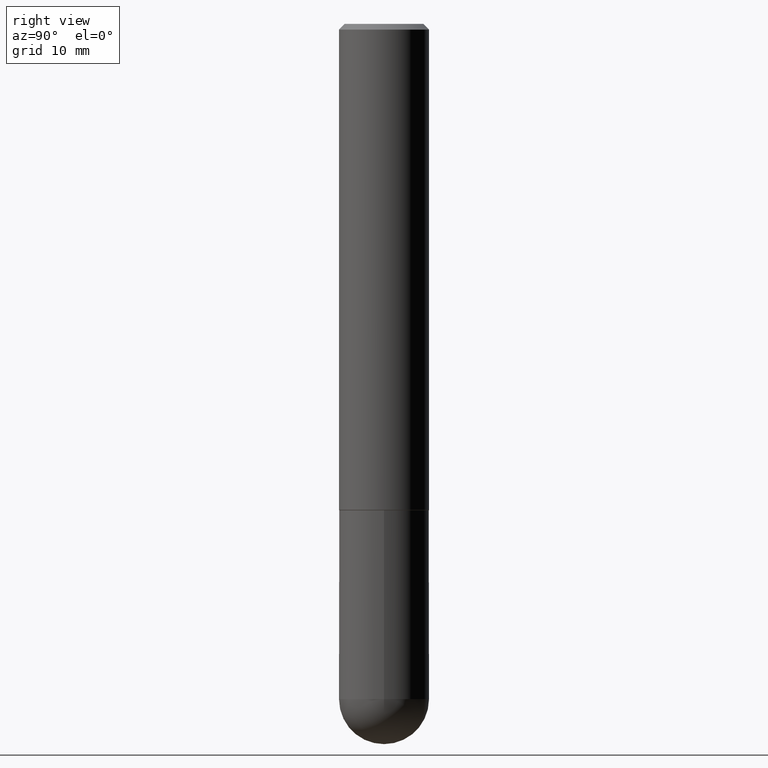
[diagram: clean part render]
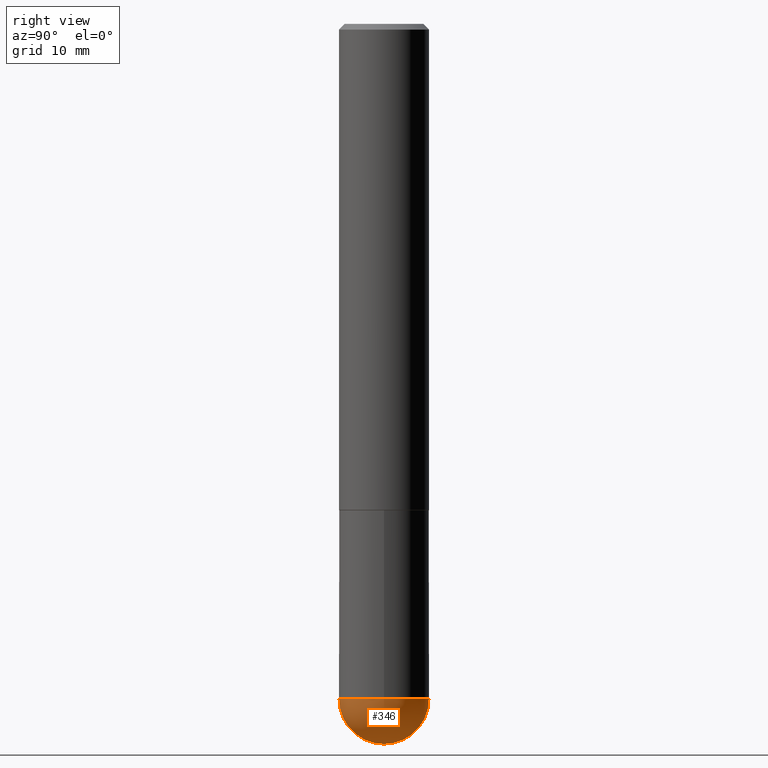
[diagram: same view with one face highlighted and labeled with its STEP entity id]
A machine part, right view. The second image highlights one B-rep face of the part: STEP entity #346.
In plain terms, the highlighted spherical surface has radius 3.9688 mm.
Its self-contained STEP definition (entity closure, byte-faithful):
#6 = VERTEX_POINT ( 'NONE', #272 ) ;
#11 = VERTEX_POINT ( 'NONE', #238 ) ;
#15 = CIRCLE ( 'NONE', #250, 0.1562500000000000000 ) ;
#22 = CARTESIAN_POINT ( 'NONE',  ( 5.400447736582527652E-29, -8.657341756053672891E-15, -2.343750000000000000 ) ) ;
#25 = AXIS2_PLACEMENT_3D ( 'NONE', #22, #412, #71 ) ;
#28 = DIRECTION ( 'NONE',  ( -1.000000000000000000, 6.982962677686265922E-15, -4.883557194083112340E-29 ) ) ;
#35 = DIRECTION ( 'NONE',  ( -2.445468806185136597E-29, 3.491481338843145583E-15, 1.000000000000000000 ) ) ;
#38 = EDGE_CURVE ( 'NONE', #228, #160, #39, .T. ) ;
#39 = CIRCLE ( 'NONE', #56, 0.1562500000000002498 ) ;
#41 = ORIENTED_EDGE ( 'NONE', *, *, #195, .F. ) ;
#56 = AXIS2_PLACEMENT_3D ( 'NONE', #166, #82, #327 ) ;
#57 = DIRECTION ( 'NONE',  ( 1.000000000000000000, -6.982962677686262766E-15, 0.000000000000000000 ) ) ;
#58 = AXIS2_PLACEMENT_3D ( 'NONE', #342, #28, #150 ) ;
#63 = ORIENTED_EDGE ( 'NONE', *, *, #187, .F. ) ;
#71 = DIRECTION ( 'NONE',  ( -7.105427357601000281E-15, -1.000000000000000000, 0.000000000000000000 ) ) ;
#78 = CARTESIAN_POINT ( 'NONE',  ( 1.091087918388535577E-15, 0.1562499999999916733, -2.343750000000000444 ) ) ;
#82 = DIRECTION ( 'NONE',  ( 1.000000000000000000, -6.982962677686265922E-15, 4.883557194083112340E-29 ) ) ;
#137 = CARTESIAN_POINT ( 'NONE',  ( 5.731567514496413899E-29, -8.183159387913622595E-15, -2.343750000000000000 ) ) ;
#139 = AXIS2_PLACEMENT_3D ( 'NONE', #406, #35, #379 ) ;
#150 = DIRECTION ( 'NONE',  ( 6.982962677686265922E-15, 1.000000000000000000, -3.496765431890251398E-15 ) ) ;
#160 = VERTEX_POINT ( 'NONE', #78 ) ;
#166 = CARTESIAN_POINT ( 'NONE',  ( 5.400447736582527652E-29, -8.657341756053672891E-15, -2.343750000000000000 ) ) ;
#187 = EDGE_CURVE ( 'NONE', #6, #160, #197, .T. ) ;
#195 = EDGE_CURVE ( 'NONE', #228, #11, #376, .T. ) ;
#197 = CIRCLE ( 'NONE', #139, 0.1562500000000000000 ) ;
#204 = DIRECTION ( 'NONE',  ( -2.445468806185136597E-29, 3.491481338843145583E-15, 1.000000000000000000 ) ) ;
#215 = SPHERICAL_SURFACE ( 'NONE', #58, 0.1562500000000002498 ) ;
#217 = CARTESIAN_POINT ( 'NONE',  ( 5.789233224183170584E-29, -9.193318162129576161E-15, -2.500000000000000000 ) ) ;
#224 = ORIENTED_EDGE ( 'NONE', *, *, #403, .F. ) ;
#228 = VERTEX_POINT ( 'NONE', #217 ) ;
#238 = CARTESIAN_POINT ( 'NONE',  ( -1.110223024625101517E-15, -0.1562500000000085487, -2.343749999999999556 ) ) ;
#250 = AXIS2_PLACEMENT_3D ( 'NONE', #137, #204, #57 ) ;
#272 = CARTESIAN_POINT ( 'NONE',  ( 0.1562500000000000000, -8.129477862328905246E-15, -2.343750000000000000 ) ) ;
#291 = ORIENTED_EDGE ( 'NONE', *, *, #38, .T. ) ;
#322 = EDGE_LOOP ( 'NONE', ( #41, #291, #63, #224 ) ) ;
#327 = DIRECTION ( 'NONE',  ( 6.982962677686265922E-15, 1.000000000000000000, 0.000000000000000000 ) ) ;
#342 = CARTESIAN_POINT ( 'NONE',  ( 5.400447736582527652E-29, -8.657341756053672891E-15, -2.343750000000000000 ) ) ;
#346 = ADVANCED_FACE ( 'NONE', ( #404 ), #215, .T. ) ;
#376 = CIRCLE ( 'NONE', #25, 0.1562500000000002498 ) ;
#379 = DIRECTION ( 'NONE',  ( 1.000000000000000000, -6.982962677686262766E-15, 0.000000000000000000 ) ) ;
#403 = EDGE_CURVE ( 'NONE', #11, #6, #15, .T. ) ;
#404 = FACE_OUTER_BOUND ( 'NONE', #322, .T. ) ;
#406 = CARTESIAN_POINT ( 'NONE',  ( 5.731567514496413899E-29, -8.183159387913622595E-15, -2.343750000000000000 ) ) ;
#412 = DIRECTION ( 'NONE',  ( -1.000000000000000000, 7.105427357601001070E-15, -4.926315508542082329E-29 ) ) ;